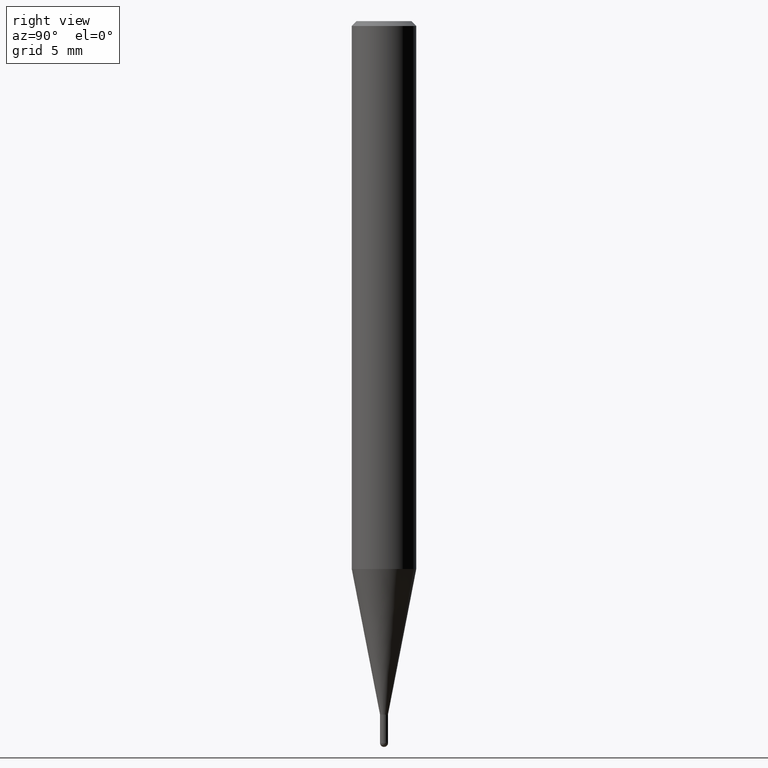
[diagram: clean part render]
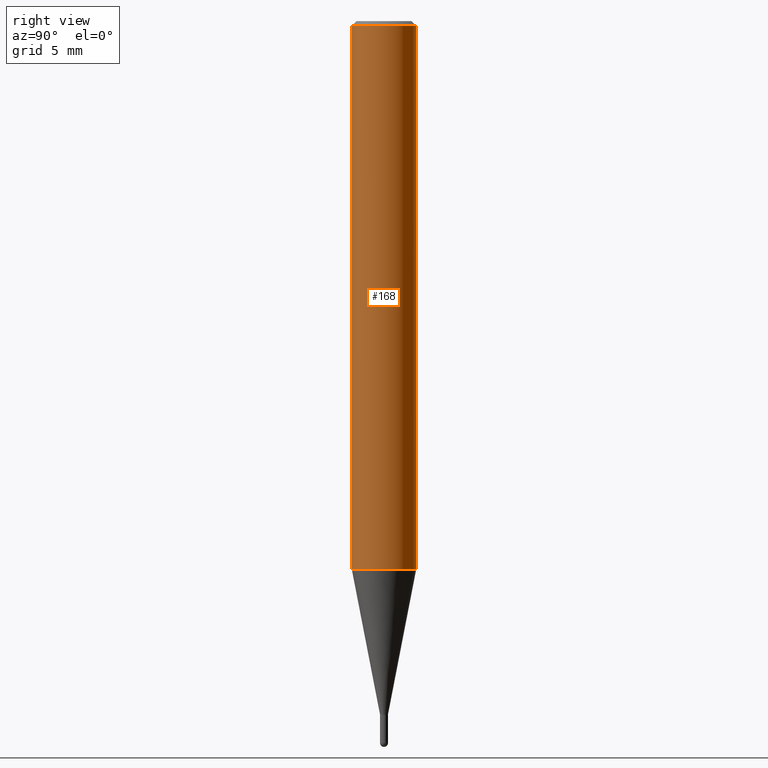
[diagram: same view with one face highlighted and labeled with its STEP entity id]
A machine part, right view. The second image highlights one B-rep face of the part: STEP entity #168.
In plain terms, the highlighted cylindrical surface (edge-blend (fillet) strip) has radius 2 mm, axis along (-0, -0, 1).
Its self-contained STEP definition (entity closure, byte-faithful):
#98=VERTEX_POINT('',#239);
#106=VERTEX_POINT('',#248);
#112=VERTEX_POINT('',#255);
#128=EDGE_CURVE('',#144,#98,#276,.T.);
#142=EDGE_CURVE('',#106,#112,#291,.T.);
#144=VERTEX_POINT('',#293);
#152=EDGE_CURVE('',#144,#112,#301,.T.);
#168=ADVANCED_FACE('',(#319),#320,.T.);
#190=EDGE_CURVE('',#98,#106,#344,.T.);
#239=CARTESIAN_POINT('',(0.0,2.0,-33.971));
#248=CARTESIAN_POINT('',(2.44921270764475E-016,-2.0,-33.971));
#255=CARTESIAN_POINT('',(2.44921270764475E-016,-2.0,-0.299999999999997));
#276=LINE('',#430,#431);
#291=LINE('',#448,#449);
#293=CARTESIAN_POINT('',(0.0,2.0,-0.299999999999997));
#301=CIRCLE('',#463,2.0);
#319=FACE_OUTER_BOUND('',#488,.T.);
#320=CYLINDRICAL_SURFACE('',#489,2.0);
#344=CIRCLE('',#521,2.0);
#430=CARTESIAN_POINT('',(-2.44921270764475E-016,2.0,-17.1355));
#431=VECTOR('',#611,1.0);
#448=CARTESIAN_POINT('',(2.44921270764475E-016,-2.0,-17.1355));
#449=VECTOR('',#621,1.0);
#463=AXIS2_PLACEMENT_3D('',#626,#627,#628);
#488=EDGE_LOOP('',(#655,#656,#657,#658));
#489=AXIS2_PLACEMENT_3D('',#659,#660,#661);
#521=AXIS2_PLACEMENT_3D('',#689,#690,#691);
#611=DIRECTION('',(0.0,0.0,-1.0));
#621=DIRECTION('',(-0.0,-0.0,1.0));
#626=CARTESIAN_POINT('',(0.0,0.0,-0.299999999999997));
#627=DIRECTION('',(0.0,0.0,-1.0));
#628=DIRECTION('',(0.0,1.0,0.0));
#655=ORIENTED_EDGE('',*,*,#128,.F.);
#656=ORIENTED_EDGE('',*,*,#152,.T.);
#657=ORIENTED_EDGE('',*,*,#142,.F.);
#658=ORIENTED_EDGE('',*,*,#190,.F.);
#659=CARTESIAN_POINT('',(0.0,0.0,-17.1355));
#660=DIRECTION('',(-0.0,-0.0,1.0));
#661=DIRECTION('',(0.0,1.0,0.0));
#689=CARTESIAN_POINT('',(0.0,0.0,-33.971));
#690=DIRECTION('',(0.0,0.0,-1.0));
#691=DIRECTION('',(0.0,1.0,0.0));